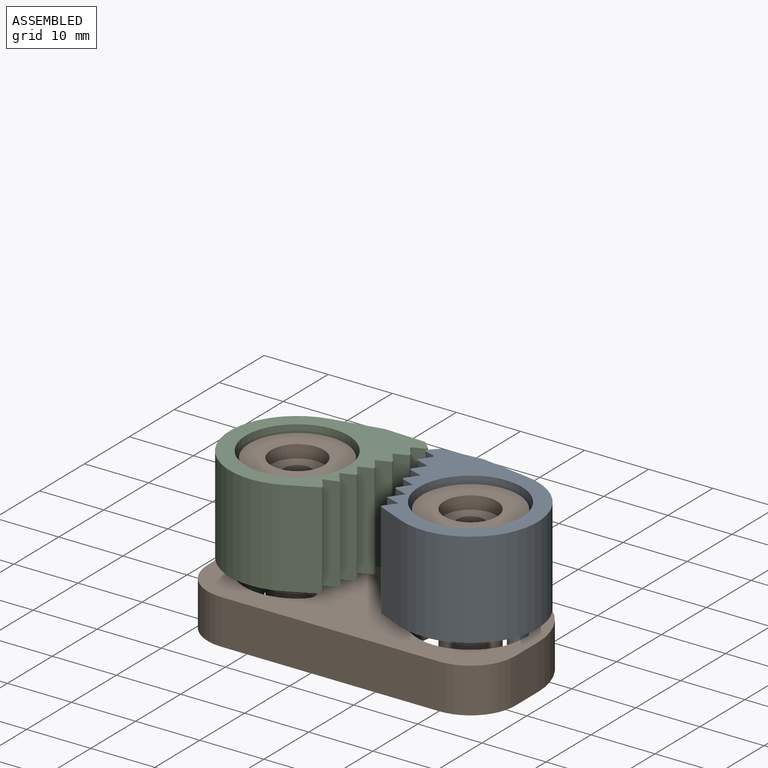
[diagram: assembled view]
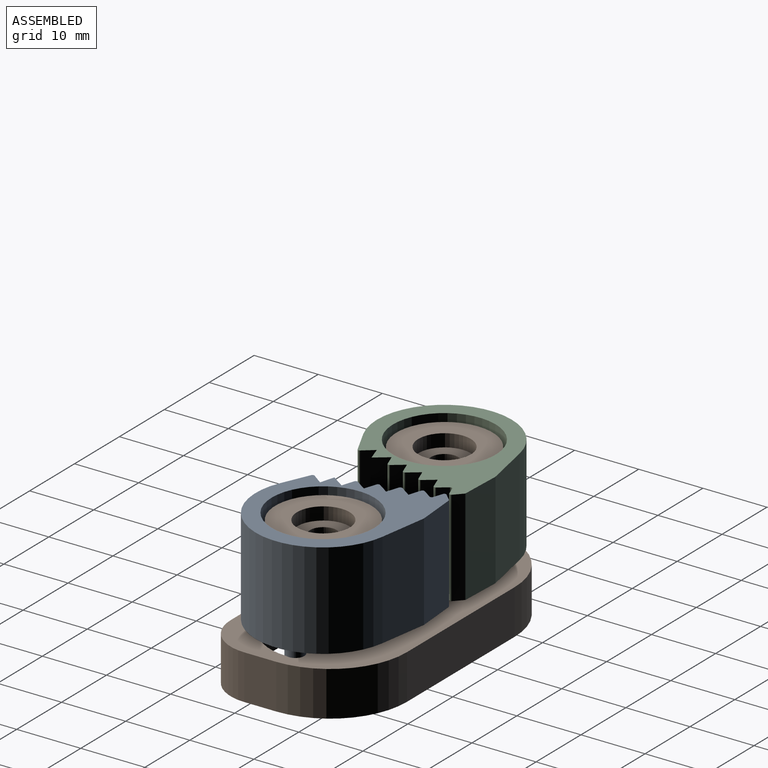
[diagram: assembled view, second angle]
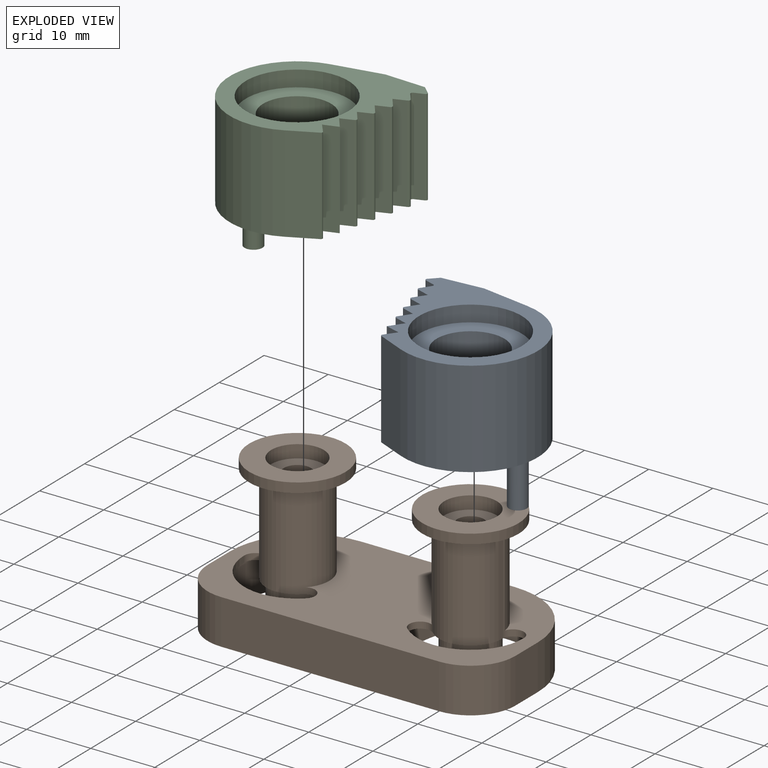
[diagram: exploded view]
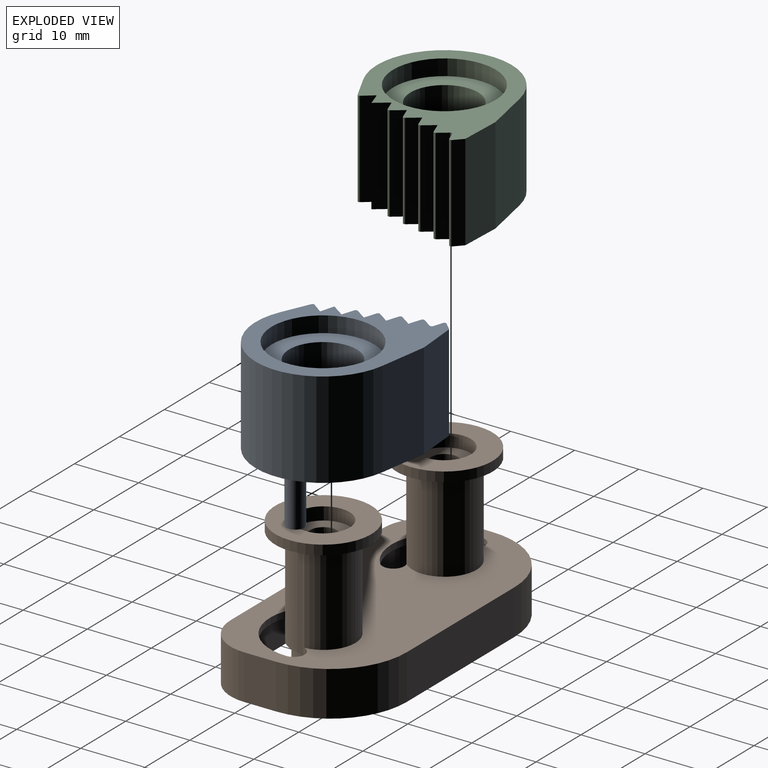
[diagram: exploded view, second angle]
ASSEMBLY  parts=3 mates=2
PART A: 34 faces, bbox 23.3x22.5x23 mm
  f0: plane 15x1.24mm, normal (-0.66,0.75,0), area 24.6mm2, adj f1,f25,f26,f28
  f1: cylinder r=0.3mm len=15mm, axis (0,0,1), area 3.2mm2, adj f0,f2,f26,f28
  f2: plane 15x6.27mm, normal (0,1,0), area 94mm2, adj f1,f3,f26,f28
  f3: plane 15x7.47mm, normal (0.23,0.97,0), area 115.2mm2, adj f2,f4,f26,f28
  f4: cylinder r=10.5mm len=20.71mm, axis (0,0,1), area 535.5mm2, adj f3,f5,f26,f28
  f5: plane 15x4.08mm, normal (-0.47,-0.88,0), area 69.6mm2, adj f4,f6,f26,f28
  f6: cylinder r=0.3mm len=15mm, axis (0,0,1), area 8.1mm2, adj f5,f7,f26,f28
  f7: plane 15x1.62mm, normal (-0.76,0.65,0), area 32mm2, adj f6,f8,f26,f28
  f8: plane 15x2.22mm, normal (-0.35,-0.94,0), area 35.6mm2, adj f7,f9,f26,f28
  f9: plane 15x2mm, normal (-0.78,0.63,0), area 38.6mm2, adj f8,f10,f26,f28
  f10: plane 15x1.87mm, normal (-0.38,-0.92,0), area 30.4mm2, adj f9,f11,f26,f28
  f11: cylinder r=0.3mm len=15mm, axis (0,0,1), area 8.4mm2, adj f10,f12,f26,f28
  f12: plane 15x1.69mm, normal (-0.78,0.63,0), area 32.6mm2, adj f11,f13,f26,f28
  f13: plane 15x1.87mm, normal (-0.38,-0.92,0), area 30.4mm2, adj f12,f14,f26,f28
  f14: cylinder r=0.3mm len=15mm, axis (0,0,1), area 8.4mm2, adj f13,f15,f26,f28
  f15: plane 15x1.69mm, normal (-0.78,0.63,0), area 32.6mm2, adj f14,f16,f26,f28
  f16: plane 15x1.87mm, normal (-0.38,-0.92,0), area 30.4mm2, adj f15,f17,f26,f28
  f17: cylinder r=0.3mm len=15mm, axis (0,0,1), area 8.4mm2, adj f16,f18,f26,f28
  f18: plane 15x1.69mm, normal (-0.78,0.63,0), area 32.6mm2, adj f17,f19,f26,f28
  f19: plane 15x1.87mm, normal (-0.38,-0.92,0), area 30.4mm2, adj f18,f20,f26,f28
  f20: cylinder r=0.3mm len=15mm, axis (0,0,1), area 8.4mm2, adj f19,f21,f26,f28
  f21: plane 15x1.38mm, normal (-0.78,0.63,0), area 26.6mm2, adj f20,f22,f26,f28
  f22: cylinder r=0.3mm len=15mm, axis (0,0,1), area 8.4mm2, adj f21,f23,f26,f28
  f23: plane 15x1.43mm, normal (-0.38,-0.92,0), area 23.2mm2, adj f22,f25,f26,f28
  f24: cylinder r=8mm len=16mm, axis (0,0,1), area 125.7mm2, adj f26,f33
  f25: cylinder r=0.3mm len=15mm, axis (0,0,1), area 9.1mm2, adj f0,f23,f26,f28
  f26: plane 23.33x22.5mm, normal (0,0,1), area 186.2mm2, adj f0,f1,f2,f3,f4,f5,f6,f7
  f27: cylinder r=5.3mm len=12.5mm, axis (0,0,-1), area 416.3mm2, adj f28,f32,f33
  f28: plane 23.33x22.5mm, normal (0,0,-1), area 282.3mm2, adj f0,f1,f2,f3,f4,f5,f6,f7
  f29: plane 2.8x2.8mm, normal (0,0,-1), area 6.2mm2, adj f30
  f30: cylinder r=1.4mm len=7.28mm, axis (0,0,1), area 61.8mm2, adj f29,f31,f32
  f31: torus R=2.4mm, axis (0,0,1), area 13.8mm2, adj f28,f30,f32
  f32: bspline ~3.06x1.1mm, area 2.2mm2, adj f27,f30,f31
  f33: plane 16x16mm, normal (0,0,1), area 112.8mm2, adj f24,f27
PART B: 56 faces, bbox 48x24.5x23 mm
  f0: cylinder r=2.1mm len=21mm, axis (0,0,1), area 277.1mm2, adj f16,f55
  f1: cylinder r=2.1mm len=21mm, axis (0,0,1), area 277.1mm2, adj f14,f53
  f2: cylinder r=5mm len=14.5mm, axis (0,0,-1), area 273.5mm2, adj f4,f5,f25,f51
  f3: cylinder r=4.9mm len=15.5mm, axis (0,0,-1), area 175.5mm2, adj f4,f5,f13,f51
  f4: cylinder r=1.7mm len=15.5mm, axis (0,0,-1), area 12.7mm2, adj f2,f3,f13,f25,f44,f51
  f5: cylinder r=1.7mm len=15.5mm, axis (0,0,-1), area 12.7mm2, adj f2,f3,f13,f25,f44,f51
  f6: cylinder r=5mm len=14.5mm, axis (0,0,-1), area 273.5mm2, adj f8,f9,f25,f49
  f7: cylinder r=4.9mm len=15.5mm, axis (0,0,-1), area 175.5mm2, adj f8,f9,f12,f49
  f8: cylinder r=1.7mm len=15.5mm, axis (0,0,-1), area 12.7mm2, adj f6,f7,f12,f25,f37,f49
  f9: cylinder r=1.7mm len=15.5mm, axis (0,0,-1), area 12.7mm2, adj f6,f7,f12,f25,f37,f49
  f10: plane 7x6mm, normal (0,-1,0), area 42mm2, adj f13,f15,f28,f43
  f11: plane 12x6mm, normal (0,1,0), area 72mm2, adj f13,f15,f30,f43
  f12: plane 21.6x20.03mm, normal (0,0,-1), area 226.7mm2, adj f7,f8,f9,f26,f27,f31,f32,f33
  f13: plane 21.6x20.03mm, normal (0,0,-1), area 226.7mm2, adj f3,f4,f5,f10,f11,f28,f29,f30
  f14: plane 8.2x8.2mm, normal (0,0,-1), area 39mm2, adj f1,f33
  f15: plane 48x24mm, normal (0,0,-1), area 299.8mm2, adj f10,f11,f17,f18,f19,f20,f21,f22
  f16: plane 8.2x8.2mm, normal (0,0,-1), area 39mm2, adj f0,f35
  f17: plane 24x7mm, normal (0,1,0), area 168mm2, adj f15,f18,f24,f25
  f18: cylinder r=12mm len=12mm, axis (0,0,-1), area 131.9mm2, adj f15,f17,f19,f25
  f19: plane 7x5mm, normal (-1,0,0), area 35mm2, adj f15,f18,f20,f25
  f20: cylinder r=7mm len=7mm, axis (0,0,-1), area 77mm2, adj f15,f19,f21,f25
  f21: plane 34x7mm, normal (0,-1,0), area 238mm2, adj f15,f20,f22,f25
  f22: cylinder r=7mm len=7mm, axis (0,0,-1), area 77mm2, adj f15,f21,f23,f25
  f23: plane 7x5mm, normal (1,0,0), area 35mm2, adj f15,f22,f24,f25
  f24: cylinder r=12mm len=12mm, axis (0,0,-1), area 131.9mm2, adj f15,f17,f23,f25
  f25: plane 48x24mm, normal (0,0,1), area 792.6mm2, adj f2,f4,f5,f6,f8,f9,f17,f18
  f26: cylinder r=10.8mm len=10.8mm, axis (0,0,-1), area 101.8mm2, adj f12,f15,f27,f34
  f27: plane 7x6mm, normal (0,-1,0), area 42mm2, adj f12,f15,f26,f42
  f28: cylinder r=10.8mm len=10.8mm, axis (0,0,-1), area 101.8mm2, adj f10,f13,f15,f29
  f29: plane 6x5mm, normal (-1,0,0), area 30mm2, adj f13,f15,f28,f30
  f30: cylinder r=5.8mm len=6mm, axis (0,0,-1), area 54.7mm2, adj f11,f13,f15,f29
  f31: plane 12x6mm, normal (0,1,0), area 72mm2, adj f12,f15,f32,f42
  f32: cylinder r=5.8mm len=6mm, axis (0,0,-1), area 54.7mm2, adj f12,f15,f31,f34
  f33: cylinder r=4.1mm len=8.2mm, axis (0,0,-1), area 154.6mm2, adj f12,f14
  f34: plane 6x5mm, normal (1,0,0), area 30mm2, adj f12,f15,f26,f32
  f35: cylinder r=4.1mm len=8.2mm, axis (0,0,-1), area 154.6mm2, adj f13,f16
  f36: plane 15x15mm, normal (0,0,1), area 123.9mm2, adj f48,f52
  f37: cylinder r=8.3mm len=13.9mm, axis (0,0,-1), area 19.2mm2, adj f8,f9,f12,f25
  f38: plane 3.5x3.5mm, normal (0,0,-1), area 9.6mm2, adj f39
  f39: cylinder r=1.75mm len=4mm, axis (0,0,1), area 44mm2, adj f38,f41
  f40: plane 15x15mm, normal (0,0,1), area 123.9mm2, adj f50,f54
  f41: torus R=3.75mm, axis (0,0,-1), area 48.9mm2, adj f12,f39
  f42: cylinder r=27.23mm len=21.6mm, axis (0,0,-1), area 133.3mm2, adj f12,f15,f27,f31
  f43: cylinder r=27.23mm len=21.6mm, axis (0,0,-1), area 133.3mm2, adj f10,f11,f13,f15
  f44: cylinder r=8.3mm len=13.9mm, axis (0,0,-1), area 19.2mm2, adj f4,f5,f13,f25
  f45: plane 3.5x3.5mm, normal (0,0,-1), area 9.6mm2, adj f46
  f46: cylinder r=1.75mm len=4mm, axis (0,0,1), area 44mm2, adj f45,f47
  f47: torus R=3.75mm, axis (0,0,-1), area 48.9mm2, adj f13,f46
  f48: cylinder r=7.5mm len=15mm, axis (0,0,1), area 70.7mm2, adj f36,f49
  f49: plane 15x15mm, normal (0,0,-1), area 99.4mm2, adj f6,f7,f8,f9,f48
  f50: cylinder r=7.5mm len=15mm, axis (0,0,1), area 70.7mm2, adj f40,f51
  f51: plane 15x15mm, normal (0,0,-1), area 99.4mm2, adj f2,f3,f4,f5,f50
  f52: cylinder r=4.1mm len=8.2mm, axis (0,0,1), area 51.5mm2, adj f36,f53
  f53: plane 8.2x8.2mm, normal (0,0,1), area 39mm2, adj f1,f52
  f54: cylinder r=4.1mm len=8.2mm, axis (0,0,1), area 51.5mm2, adj f40,f55
  f55: plane 8.2x8.2mm, normal (0,0,1), area 39mm2, adj f0,f54
PART C: 34 faces, bbox 23.3x22.5x23 mm
  f0: plane 15x1.24mm, normal (0.66,0.75,0), area 24.6mm2, adj f1,f25,f26,f28
  f1: cylinder r=0.3mm len=15mm, axis (0,0,1), area 3.2mm2, adj f0,f2,f26,f28
  f2: plane 15x6.27mm, normal (0,1,0), area 94mm2, adj f1,f3,f26,f28
  f3: plane 15x7.47mm, normal (-0.23,0.97,0), area 115.2mm2, adj f2,f4,f26,f28
  f4: cylinder r=10.5mm len=20.71mm, axis (0,0,1), area 535.5mm2, adj f3,f5,f26,f28
  f5: plane 15x4.08mm, normal (0.47,-0.88,0), area 69.6mm2, adj f4,f6,f26,f28
  f6: cylinder r=0.3mm len=15mm, axis (0,0,1), area 8.1mm2, adj f5,f7,f26,f28
  f7: plane 15x1.62mm, normal (0.76,0.65,0), area 32mm2, adj f6,f8,f26,f28
  f8: plane 15x2.22mm, normal (0.35,-0.94,0), area 35.6mm2, adj f7,f9,f26,f28
  f9: plane 15x2mm, normal (0.78,0.63,0), area 38.6mm2, adj f8,f10,f26,f28
  f10: plane 15x1.87mm, normal (0.38,-0.92,0), area 30.4mm2, adj f9,f11,f26,f28
  f11: cylinder r=0.3mm len=15mm, axis (0,0,1), area 8.4mm2, adj f10,f12,f26,f28
  f12: plane 15x1.69mm, normal (0.78,0.63,0), area 32.6mm2, adj f11,f13,f26,f28
  f13: plane 15x1.87mm, normal (0.38,-0.92,0), area 30.4mm2, adj f12,f14,f26,f28
  f14: cylinder r=0.3mm len=15mm, axis (0,0,1), area 8.4mm2, adj f13,f15,f26,f28
  f15: plane 15x1.69mm, normal (0.78,0.63,0), area 32.6mm2, adj f14,f16,f26,f28
  f16: plane 15x1.87mm, normal (0.38,-0.92,0), area 30.4mm2, adj f15,f17,f26,f28
  f17: cylinder r=0.3mm len=15mm, axis (0,0,1), area 8.4mm2, adj f16,f18,f26,f28
  f18: plane 15x1.69mm, normal (0.78,0.63,0), area 32.6mm2, adj f17,f19,f26,f28
  f19: plane 15x1.87mm, normal (0.38,-0.92,0), area 30.4mm2, adj f18,f20,f26,f28
  f20: cylinder r=0.3mm len=15mm, axis (0,0,1), area 8.4mm2, adj f19,f21,f26,f28
  f21: plane 15x1.38mm, normal (0.78,0.63,0), area 26.6mm2, adj f20,f22,f26,f28
  f22: cylinder r=0.3mm len=15mm, axis (0,0,1), area 8.4mm2, adj f21,f23,f26,f28
  f23: plane 15x1.43mm, normal (0.38,-0.92,0), area 23.2mm2, adj f22,f25,f26,f28
  f24: cylinder r=8mm len=16mm, axis (0,0,1), area 125.7mm2, adj f26,f33
  f25: cylinder r=0.3mm len=15mm, axis (0,0,1), area 9.1mm2, adj f0,f23,f26,f28
  f26: plane 23.33x22.5mm, normal (0,0,1), area 186.2mm2, adj f0,f1,f2,f3,f4,f5,f6,f7
  f27: cylinder r=5.3mm len=12.5mm, axis (0,0,-1), area 416.3mm2, adj f28,f32,f33
  f28: plane 23.33x22.5mm, normal (0,0,-1), area 282.3mm2, adj f0,f1,f2,f3,f4,f5,f6,f7
  f29: plane 2.8x2.8mm, normal (0,0,-1), area 6.2mm2, adj f30
  f30: cylinder r=1.4mm len=7.28mm, axis (0,0,1), area 61.8mm2, adj f29,f31,f32
  f31: torus R=2.4mm, axis (0,0,1), area 13.8mm2, adj f28,f30,f32
  f32: bspline ~3.06x1.1mm, area 2.2mm2, adj f27,f30,f31
  f33: plane 16x16mm, normal (0,0,1), area 112.8mm2, adj f24,f27
PLACE A rot(axis=(0,0,1),4.7deg) t=(-5.82,4.02,-6.47)mm
PLACE B t=(-5.88,5.17,-7.47)mm fixed
PLACE C rot(axis=(0,0,-1),2.2deg) t=(-5.91,4.61,-6.47)mm
MATE revolute C.f24 <-> B.f49  axis (0,0,1) through (-19.4,5.12,14.03)mm
MATE revolute A.f24 <-> B.f51  axis (0,0,1) through (7.64,5.12,14.03)mm
